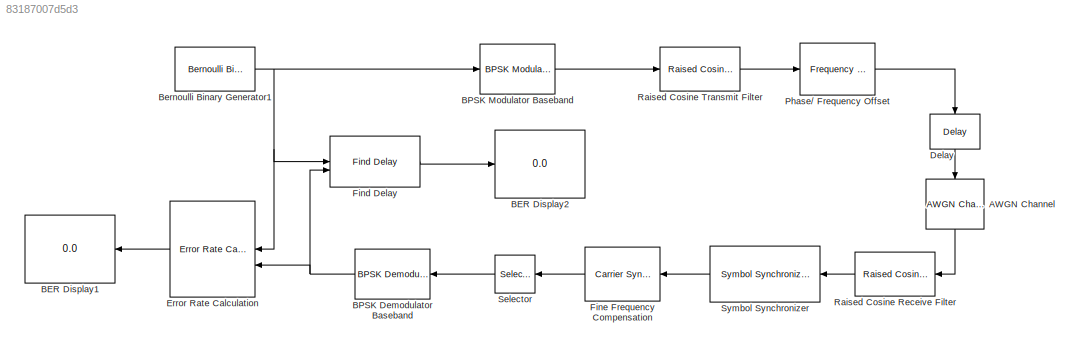
MODEL slx_83187007d5d3
KIND model
CONFIG AbsTol = auto
CONFIG EnableMultiTasking = off
CONFIG FixedStep = auto
CONFIG MaxStep = auto
CONFIG MinStep = auto
CONFIG RelTol = 1e-3
CONFIG SampleTimeConstraint = Unconstrained
CONFIG SolverName = VariableStepAuto
CONFIG StartTime = 0.0
CONFIG StopTime = inf
BLOCK [Reference] AWGN Channel  REF=commchan3/AWGN
Channel
  NameLocation = right
  SourceBlock = commchan3/AWGN\nChannel
  SourceType = AWGN Channel
  UserDataPersistent = on
BLOCK [Display] BER Display1
  Decimation = 1
BLOCK [Display] BER Display2
  Decimation = 1
BLOCK [Reference] BPSK Demodulator Baseband  REF=commdigbbndpm3/BPSK
Demodulator
Baseband
  SourceBlock = commdigbbndpm3/BPSK\nDemodulator\nBaseband
  SourceType = BPSK Demodulator Baseband
BLOCK [Reference] BPSK Modulator Baseband  REF=commdigbbndpm3/BPSK
Modulator
Baseband
  SourceBlock = commdigbbndpm3/BPSK\nModulator\nBaseband
  SourceType = BPSK Modulator Baseband
BLOCK [Reference] Bernoulli Binary Generator1  REF=commrandsrc3/Bernoulli Binary
Generator
  SourceBlock = commrandsrc3/Bernoulli Binary\nGenerator
  SourceType = Bernoulli Binary Generator
BLOCK [Delay] Delay
  DelayLength = 7
  InputPortMap = u0
  InputProcessing = Columns as channels (frame based)
  NameLocation = right
BLOCK [Reference] Error Rate Calculation  REF=commsink2/Error Rate
Calculation
  SourceBlock = commsink2/Error Rate\nCalculation
  SourceType = Error Rate Calculation
BLOCK [Reference] Find Delay  REF=commutil2/Find Delay
  SourceBlock = commutil2/Find Delay
  SourceType = Find Delay
BLOCK [Reference] Fine Frequency Compensation  REF=commsync2/Carrier Synchronizer
  SourceBlock = commsync2/Carrier Synchronizer
  SourceType = Carrier Synchronizer
BLOCK [Reference] Phase// Frequency Offset  REF=commrflib2/Phase//
Frequency
Offset
  SourceBlock = commrflib2/Phase//\nFrequency\nOffset
  SourceType = Phase/Frequency Offset
BLOCK [Reference] Raised Cosine Receive Filter  REF=commfilt2/Raised Cosine
Receive Filter
  SourceBlock = commfilt2/Raised Cosine\nReceive Filter
  SourceType = Raised Cosine Receive Filter
  UserDataPersistent = on
BLOCK [Reference] Raised Cosine Transmit Filter  REF=commfilt2/Raised Cosine
Transmit Filter
  SourceBlock = commfilt2/Raised Cosine\nTransmit Filter
  SourceType = Raised Cosine Transmit Filter
  UserDataPersistent = on
BLOCK [Selector] Selector
  IndexOptions = Index vector (dialog),Index vector (dialog)
  Indices = [1:1000],1
  InputPortWidth = 3
  NumberOfDimensions = 2
  OutputSizes = 1,1
BLOCK [Reference] Symbol Synchronizer  REF=commsync2/Symbol Synchronizer
  SourceBlock = commsync2/Symbol Synchronizer
  SourceType = Symbol Synchronizer
LINE AWGN Channel:1 -> Raised Cosine Receive Filter:1
NET BPSK Demodulator Baseband:1 -> Error Rate Calculation:2, Find Delay:2
LINE BPSK Modulator Baseband:1 -> Raised Cosine Transmit Filter:1
NET Bernoulli Binary Generator1:1 -> BPSK Modulator Baseband:1, Error Rate Calculation:1, Find Delay:1
LINE Delay:1 -> AWGN Channel:1
LINE Error Rate Calculation:1 -> BER Display1:1
LINE Find Delay:1 -> BER Display2:1
LINE Fine Frequency Compensation:1 -> Selector:1
LINE Phase// Frequency Offset:1 -> Delay:1
LINE Raised Cosine Receive Filter:1 -> Symbol Synchronizer:1
LINE Raised Cosine Transmit Filter:1 -> Phase// Frequency Offset:1
LINE Selector:1 -> BPSK Demodulator Baseband:1
LINE Symbol Synchronizer:1 -> Fine Frequency Compensation:1
note: NET lines group one-source signal fan-out (src -> all destinations, sorted); 1:1 wires keep LINE
